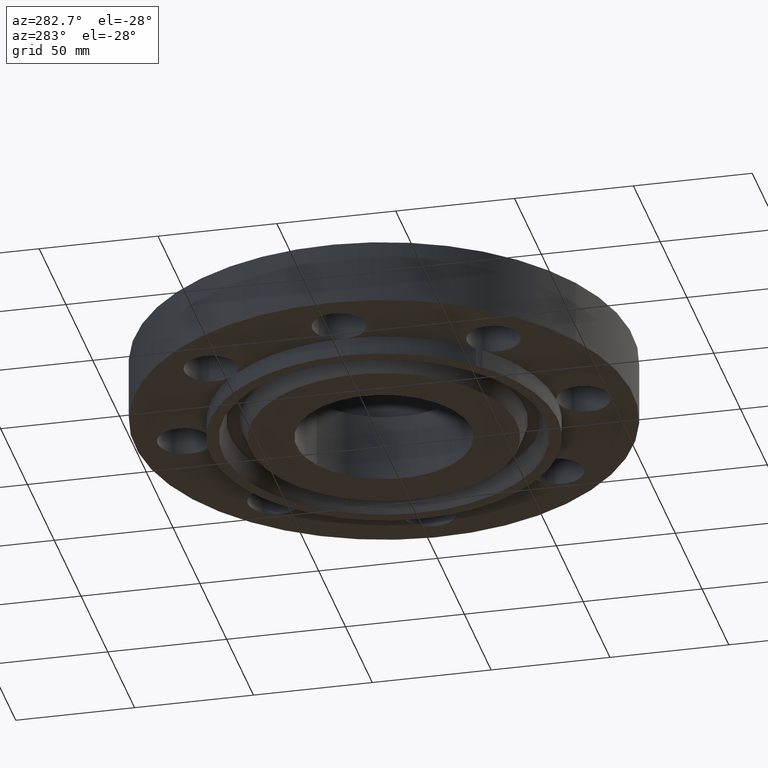
[diagram: clean part render]
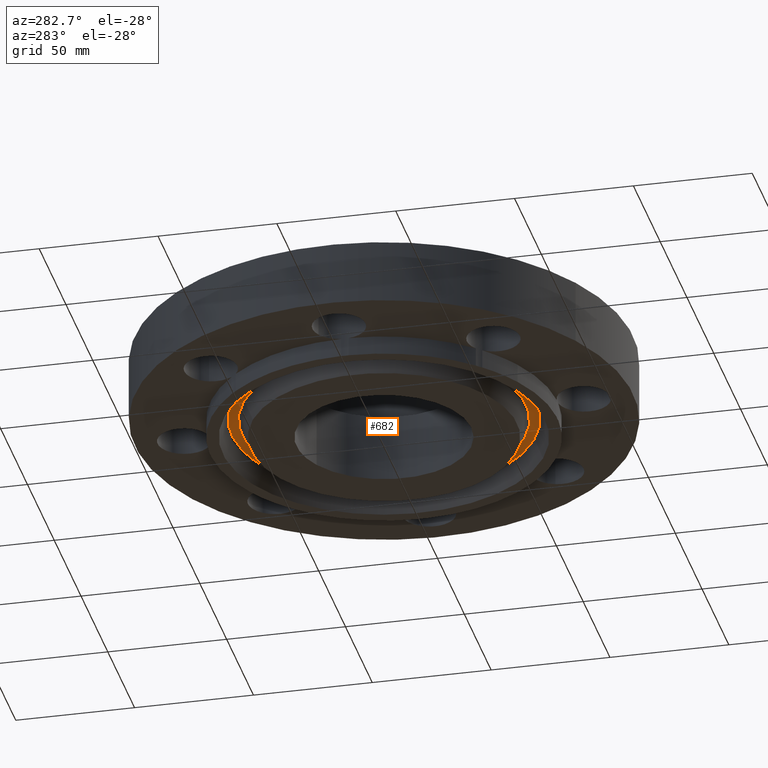
[diagram: same view with one face highlighted and labeled with its STEP entity id]
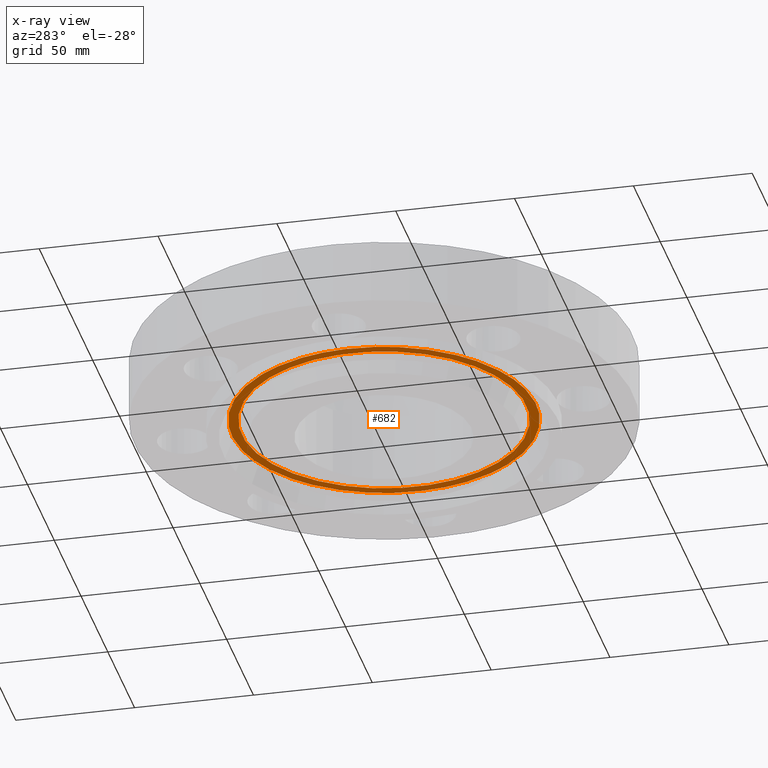
[diagram: x-ray of the same camera — body ghosted, the highlighted face saturated]
A machine part, auxiliary view. The second image highlights one B-rep face of the part: STEP entity #682.
The next image is the same camera in x-ray: the body ghosted, the highlighted face saturated — about 0% of this face is hidden behind the body in this view.
In plain terms, the highlighted planar face has unit normal (0, 0, -1).
Its self-contained STEP definition (entity closure, byte-faithful):
#496=AXIS2_PLACEMENT_3D('Circle Axis2P3D',#494,#495,$) ;
#534=AXIS2_PLACEMENT_3D('Circle Axis2P3D',#532,#533,$) ;
#616=AXIS2_PLACEMENT_3D('Plane Axis2P3D',#613,#614,#615) ;
#494=CARTESIAN_POINT('Axis2P3D Location',(0.,0.,0.)) ;
#498=CARTESIAN_POINT('Vertex',(1.12970830477,-2.06791718095,0.)) ;
#500=CARTESIAN_POINT('Vertex',(-1.12970830477,2.06791718094,0.)) ;
#532=CARTESIAN_POINT('Axis2P3D Location',(0.,0.,0.)) ;
#613=CARTESIAN_POINT('Axis2P3D Location',(0.,2.87500000001,0.)) ;
#619=CARTESIAN_POINT('Control Point',(-1.20749119596,2.21029780834,0.)) ;
#620=CARTESIAN_POINT('Control Point',(-1.41056121595,2.09936015081,0.)) ;
#621=CARTESIAN_POINT('Control Point',(-1.6008907949,1.96510130302,0.)) ;
#622=CARTESIAN_POINT('Control Point',(-1.77491370935,1.80946285392,0.)) ;
#623=CARTESIAN_POINT('Control Point',(-2.08409175529,1.46102040856,0.)) ;
#624=CARTESIAN_POINT('Control Point',(-2.30622982969,1.05156000345,0.)) ;
#625=CARTESIAN_POINT('Control Point',(-2.39320324321,0.834896839196,0.)) ;
#626=CARTESIAN_POINT('Control Point',(-2.51583294013,0.38549149946,0.)) ;
#627=CARTESIAN_POINT('Control Point',(-2.53339146565,-0.0800134368646,0.)) ;
#628=CARTESIAN_POINT('Control Point',(-2.51528217117,-0.312778027802,0.)) ;
#629=CARTESIAN_POINT('Control Point',(-2.42593728056,-0.769965836514,0.)) ;
#630=CARTESIAN_POINT('Control Point',(-2.23527564427,-1.19499676243,0.)) ;
#631=CARTESIAN_POINT('Control Point',(-2.11583845211,-1.39560099604,0.)) ;
#632=CARTESIAN_POINT('Control Point',(-1.83304388713,-1.76577721886,0.)) ;
#633=CARTESIAN_POINT('Control Point',(-1.47369417906,-2.06220753925,0.)) ;
#634=CARTESIAN_POINT('Control Point',(-1.27769338848,-2.18905781109,0.)) ;
#635=CARTESIAN_POINT('Control Point',(-0.860084228595,-2.39546951525,0.)) ;
#636=CARTESIAN_POINT('Control Point',(-0.406554594508,-2.50183689113,0.)) ;
#637=CARTESIAN_POINT('Control Point',(-0.17462932477,-2.52863186215,0.)) ;
#638=CARTESIAN_POINT('Control Point',(0.25366603609,-2.5284934455,0.)) ;
#639=CARTESIAN_POINT('Control Point',(0.671680623915,-2.43908984507,0.)) ;
#640=CARTESIAN_POINT('Control Point',(0.857846402148,-2.38000287798,0.)) ;
#641=CARTESIAN_POINT('Control Point',(1.03715105693,-2.30335505035,0.)) ;
#642=CARTESIAN_POINT('Control Point',(1.20749119596,-2.21029780828,0.)) ;
#643=CARTESIAN_POINT('Vertex',(-1.20749119597,2.2102978083,0.)) ;
#645=CARTESIAN_POINT('Vertex',(1.20749119597,-2.2102978083,0.)) ;
#649=CARTESIAN_POINT('Control Point',(1.20749119596,-2.21029780828,0.)) ;
#650=CARTESIAN_POINT('Control Point',(1.41056121614,-2.09936015064,0.)) ;
#651=CARTESIAN_POINT('Control Point',(1.60089079526,-1.9651013027,0.)) ;
#652=CARTESIAN_POINT('Control Point',(1.77491370907,-1.80946285419,0.)) ;
#653=CARTESIAN_POINT('Control Point',(2.08409175521,-1.46102040866,0.)) ;
#654=CARTESIAN_POINT('Control Point',(2.30622982973,-1.05156000331,0.)) ;
#655=CARTESIAN_POINT('Control Point',(2.39320324319,-0.834896839279,0.)) ;
#656=CARTESIAN_POINT('Control Point',(2.51583294012,-0.385491499519,0.)) ;
#657=CARTESIAN_POINT('Control Point',(2.53339146565,0.0800134368469,0.)) ;
#658=CARTESIAN_POINT('Control Point',(2.51528217118,0.312778027805,0.)) ;
#659=CARTESIAN_POINT('Control Point',(2.42593728055,0.769965836532,0.)) ;
#660=CARTESIAN_POINT('Control Point',(2.23527564425,1.19499676246,0.)) ;
#661=CARTESIAN_POINT('Control Point',(2.11583845213,1.39560099599,0.)) ;
#662=CARTESIAN_POINT('Control Point',(1.83304388713,1.76577721887,0.)) ;
#663=CARTESIAN_POINT('Control Point',(1.47369417899,2.06220753929,0.)) ;
#664=CARTESIAN_POINT('Control Point',(1.27769338855,2.18905781105,0.)) ;
#665=CARTESIAN_POINT('Control Point',(0.860084228761,2.39546951518,0.)) ;
#666=CARTESIAN_POINT('Control Point',(0.406554594752,2.50183689107,0.)) ;
#667=CARTESIAN_POINT('Control Point',(0.174629324512,2.52863186222,0.)) ;
#668=CARTESIAN_POINT('Control Point',(-0.253666035873,2.52849344554,0.)) ;
#669=CARTESIAN_POINT('Control Point',(-0.671680623246,2.43908984528,0.)) ;
#670=CARTESIAN_POINT('Control Point',(-0.85784640278,2.38000287778,0.)) ;
#671=CARTESIAN_POINT('Control Point',(-1.03715105722,2.30335505025,0.)) ;
#672=CARTESIAN_POINT('Control Point',(-1.20749119596,2.21029780834,0.)) ;
#495=DIRECTION('Axis2P3D Direction',(0.,0.,0.0393700787402)) ;
#533=DIRECTION('Axis2P3D Direction',(0.,0.,0.0393700787402)) ;
#614=DIRECTION('Axis2P3D Direction',(0.,0.,-0.0393700787402)) ;
#615=DIRECTION('Axis2P3D XDirection',(0.0393700787402,0.,0.)) ;
#675=ORIENTED_EDGE('',*,*,#647,.F.) ;
#676=ORIENTED_EDGE('',*,*,#673,.F.) ;
#679=ORIENTED_EDGE('',*,*,#502,.T.) ;
#680=ORIENTED_EDGE('',*,*,#536,.T.) ;
#681=FACE_BOUND('',#678,.T.) ;
#682=ADVANCED_FACE('PartBody',(#677,#681),#617,.T.) ;
#618=B_SPLINE_CURVE_WITH_KNOTS('',5,(#619,#620,#621,#622,#623,#624,#625,#626,#627,#628,#629,#630,#631,#632,#633,#634,#635,#636,#637,#638,#639,#640,#641,#642),.UNSPECIFIED.,.F.,.U.,(6,3,3,3,3,3,3,6),(0.,41.5600963197,83.1201926605,124.680289003,166.240385338,207.800481681,249.360578037,284.222211407),.UNSPECIFIED.) ;
#648=B_SPLINE_CURVE_WITH_KNOTS('',5,(#649,#650,#651,#652,#653,#654,#655,#656,#657,#658,#659,#660,#661,#662,#663,#664,#665,#666,#667,#668,#669,#670,#671,#672),.UNSPECIFIED.,.F.,.U.,(6,3,3,3,3,3,3,6),(0.,41.5600963588,83.1201927067,124.680289048,166.240385387,207.800481738,249.360578071,284.222211379),.UNSPECIFIED.) ;
#497=CIRCLE('generated circle',#496,2.35637906988) ;
#535=CIRCLE('generated circle',#534,2.35637906988) ;
#502=EDGE_CURVE('',#499,#501,#497,.T.) ;
#536=EDGE_CURVE('',#501,#499,#535,.T.) ;
#647=EDGE_CURVE('',#644,#646,#618,.T.) ;
#673=EDGE_CURVE('',#646,#644,#648,.T.) ;
#674=EDGE_LOOP('',(#675,#676)) ;
#678=EDGE_LOOP('',(#679,#680)) ;
#677=FACE_OUTER_BOUND('',#674,.T.) ;
#617=PLANE('',#616) ;
#499=VERTEX_POINT('',#498) ;
#501=VERTEX_POINT('',#500) ;
#644=VERTEX_POINT('',#643) ;
#646=VERTEX_POINT('',#645) ;